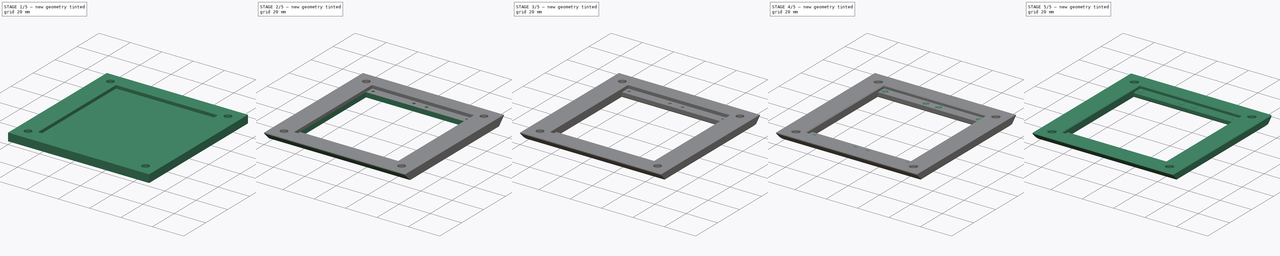
[diagram: build sequence overview — one tinted view per stage of 5, left to right]
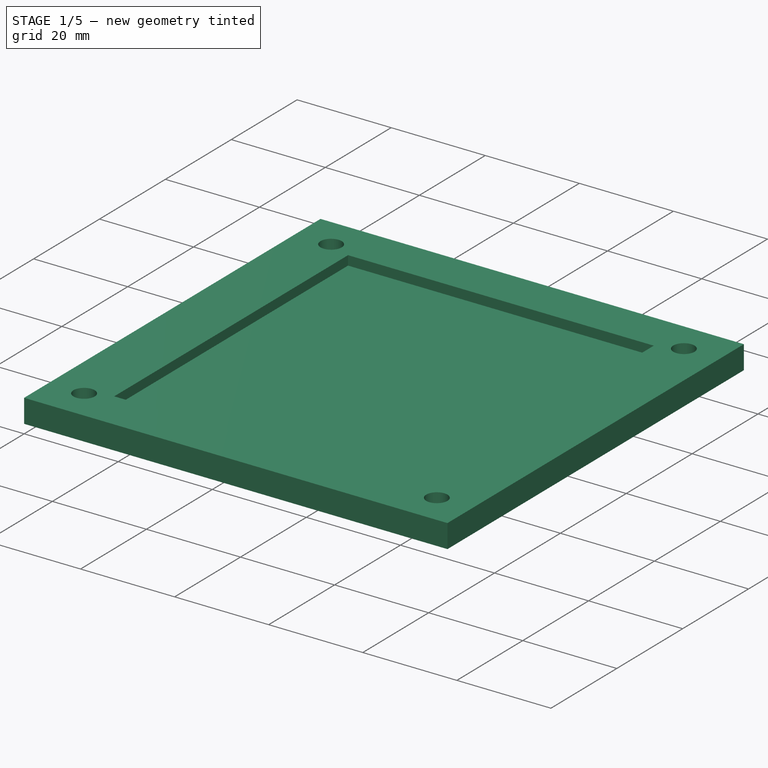
[diagram: stage 1 of 5 — iso view after this stage's code; geometry added in this stage tinted green]
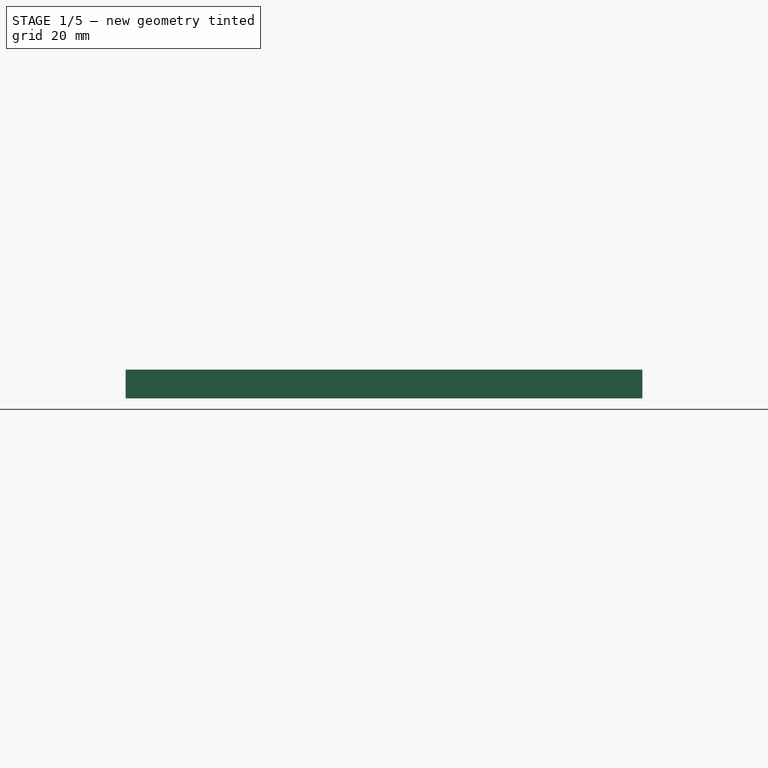
[diagram: stage 1 of 5 — front view after this stage's code; geometry added in this stage tinted green]
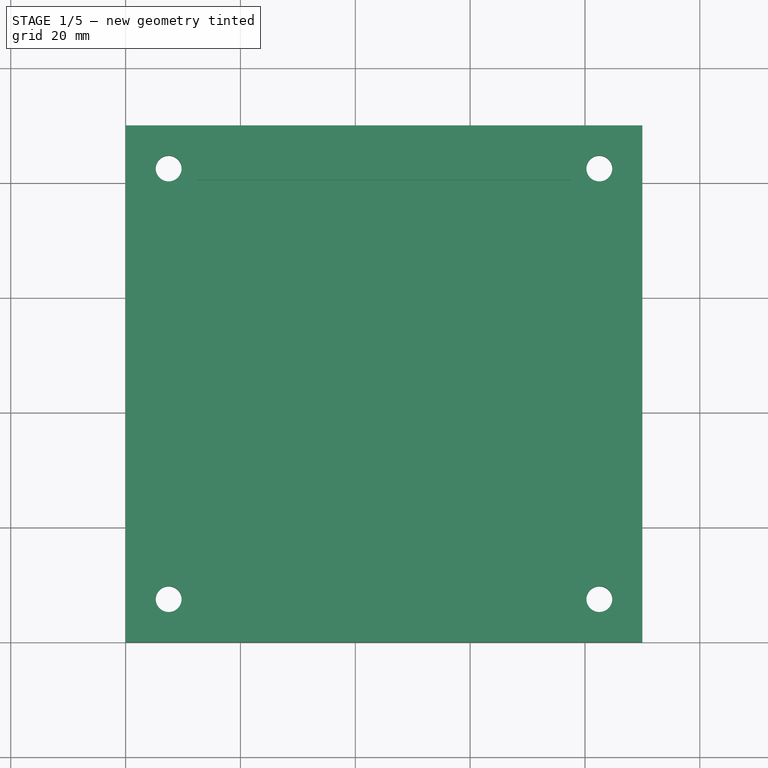
[diagram: stage 1 of 5 — top view after this stage's code; geometry added in this stage tinted green]
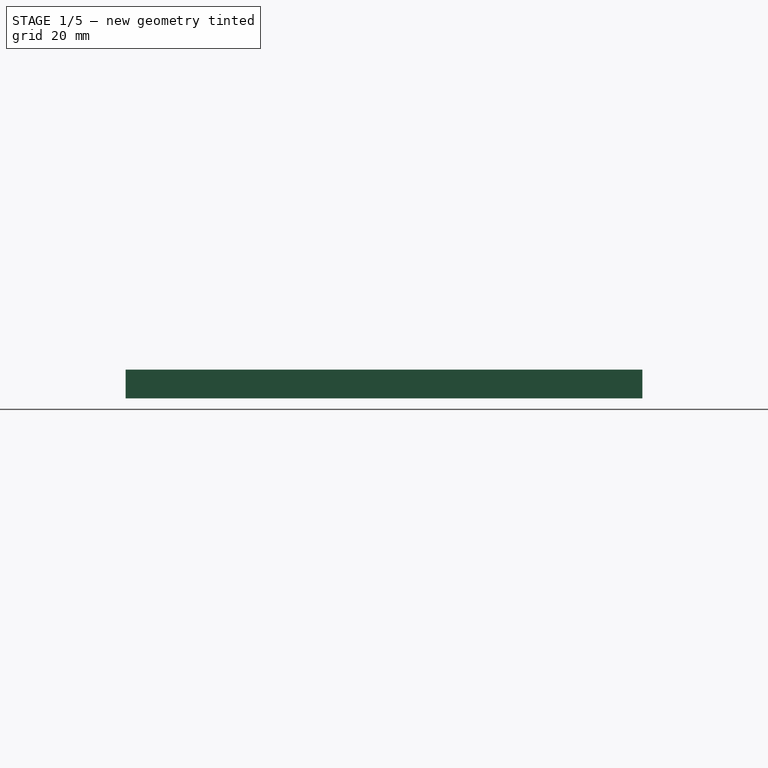
[diagram: stage 1 of 5 — right view after this stage's code; geometry added in this stage tinted green]
FCSTD DOCUMENT  (FreeCAD 0.18R4 (GitTag))
Label: PCB Mount Raspberry Pi
License: All rights reserved
LicenseURL: http://en.wikipedia.org/wiki/All_rights_reserved
objects: PartDesign::Chamfer×11, Sketcher::SketchObject×5, PartDesign::Pocket×4, PartDesign::Pad×1, PartDesign::Body×1
note: 27 computed .brp shape members not serialized (recipe doc carries the construction recipe); baked Part::Feature solids carry a one-line shape summary decoded from their .brp

FEATURE [Sketcher::SketchObject] Sketch
  MapMode = 5
  Support = -> [XY_Plane]
  sketch-geometry (4):
    g0: LineSegment StartX=0 StartY=0 StartZ=0 EndX=90 EndY=0 EndZ=0
    g1: LineSegment StartX=90 StartY=0 StartZ=0 EndX=90 EndY=90 EndZ=0
    g2: LineSegment StartX=90 StartY=90 StartZ=0 EndX=0 EndY=90 EndZ=0
    g3: LineSegment StartX=0 StartY=90 StartZ=0 EndX=0 EndY=0 EndZ=0
  constraints (11):
    c: Coincident(g0,g1)
    c: Coincident(g1,g2)
    c: Coincident(g2,g3)
    c: Coincident(g3,g0)
    c: Horizontal(g0)
    c: Horizontal(g2)
    c: Vertical(g1)
    c: Vertical(g3)
    c: Coincident(g-1,g0)
    c: Equal(g3,g2)
    c: Distance(g3) = 90
FEATURE [PartDesign::Pad] Pad  label="grundplatte"
  Length = 5
  Length2 = 100
  Profile = -> Sketch
  Type = 0
FEATURE [Sketcher::SketchObject] Sketch001
  MapMode = 5
  Placement = pos=(0,0,5) rot=(0,0,1;0rad)
  Support = -> [Pad]
  sketch-geometry (8):
    g0: Circle CenterX=7.5 CenterY=82.5 CenterZ=0 NormalX=0 NormalY=0 NormalZ=1 AngleXU=0 Radius=2.25
    g1: Circle CenterX=82.5 CenterY=82.5 CenterZ=0 NormalX=0 NormalY=0 NormalZ=1 AngleXU=0 Radius=2.25
    g2: Circle CenterX=82.5 CenterY=7.5 CenterZ=0 NormalX=0 NormalY=0 NormalZ=1 AngleXU=0 Radius=2.25
    g3: Circle CenterX=7.5 CenterY=7.5 CenterZ=0 NormalX=0 NormalY=0 NormalZ=1 AngleXU=0 Radius=2.25
    g4: LineSegment [constr] StartX=82.5 StartY=82.5 StartZ=0 EndX=7.5 EndY=82.5 EndZ=0
    g5: LineSegment [constr] StartX=7.5 StartY=82.5 StartZ=0 EndX=7.5 EndY=7.5 EndZ=0
    g6: LineSegment [constr] StartX=7.5 StartY=7.5 StartZ=0 EndX=82.5 EndY=7.5 EndZ=0
    g7: LineSegment [constr] StartX=82.5 StartY=7.5 StartZ=0 EndX=82.5 EndY=82.5 EndZ=0
  constraints (20):
    c: Equal(g0,g1)
    c: Equal(g1,g2)
    c: Equal(g2,g3)
    c: Coincident(g4,g5)
    c: Coincident(g5,g6)
    c: Coincident(g6,g7)
    c: Coincident(g7,g4)
    c: Horizontal(g4)
    c: Horizontal(g6)
    c: Vertical(g5)
    c: Vertical(g7)
    c: Coincident(g0,g4)
    c: Coincident(g2,g6)
    c: Coincident(g5,g3)
    c: Coincident(g1,g4)
    c: Equal(g5,g4)
    c: Distance(g4) = 75
    c: DistanceY(g-1,g3) = 7.5
    c: DistanceX(g-2,g0) = 7.5
    c: Radius(g0) = 2.25
FEATURE [PartDesign::Pocket] Pocket
  BaseFeature = -> Pad
  Length = 5
  Length2 = 100
  Profile = -> Sketch001
  Type = 0
FEATURE [Sketcher::SketchObject] Sketch002
  MapMode = 5
  Placement = pos=(0,0,5) rot=(0,0,1;0rad)
  Support = -> [Pocket]
  sketch-geometry (4):
    g0: LineSegment StartX=12.5 StartY=80.5 StartZ=0 EndX=77.5 EndY=80.5 EndZ=0
    g1: LineSegment StartX=77.5 StartY=80.5 StartZ=0 EndX=77.5 EndY=9.5 EndZ=0
    g2: LineSegment StartX=77.5 StartY=9.5 StartZ=0 EndX=12.5 EndY=9.5 EndZ=0
    g3: LineSegment StartX=12.5 StartY=9.5 StartZ=0 EndX=12.5 EndY=80.5 EndZ=0
  constraints (12):
    c: Coincident(g0,g1)
    c: Coincident(g1,g2)
    c: Coincident(g2,g3)
    c: Coincident(g3,g0)
    c: Horizontal(g0)
    c: Horizontal(g2)
    c: Vertical(g1)
    c: Vertical(g3)
    c: Distance(g3) = 71
    c: Distance(g0) = 65
    c: DistanceY(g-1,g2) = 9.5
    c: DistanceX(g-2,g2) = 12.5
FEATURE [PartDesign::Pocket] Pocket001
  BaseFeature = -> Pocket
  Length = 2
  Length2 = 100
  Profile = -> Sketch002
  Type = 0
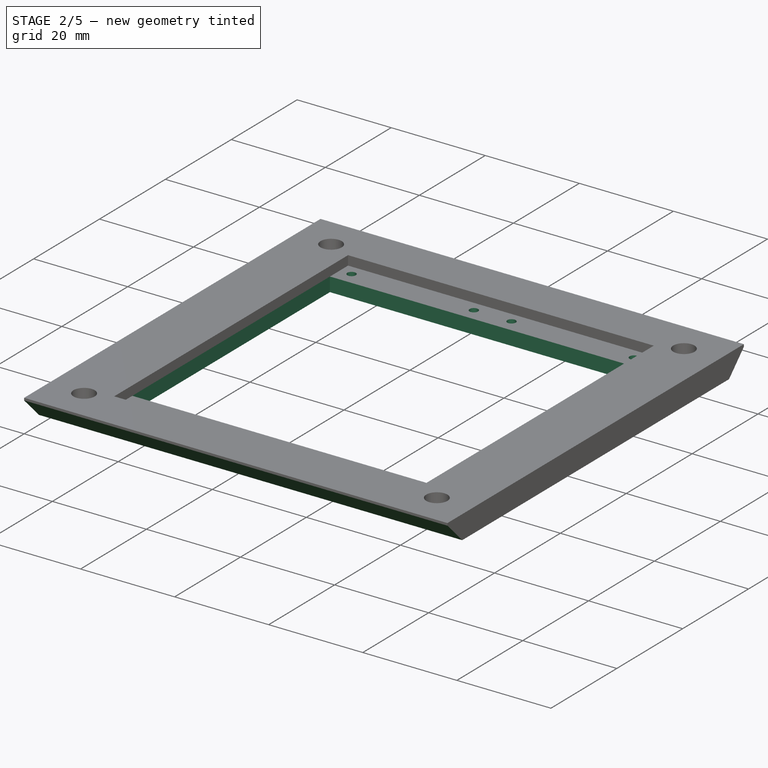
[diagram: stage 2 of 5 — iso view after this stage's code; geometry added in this stage tinted green]
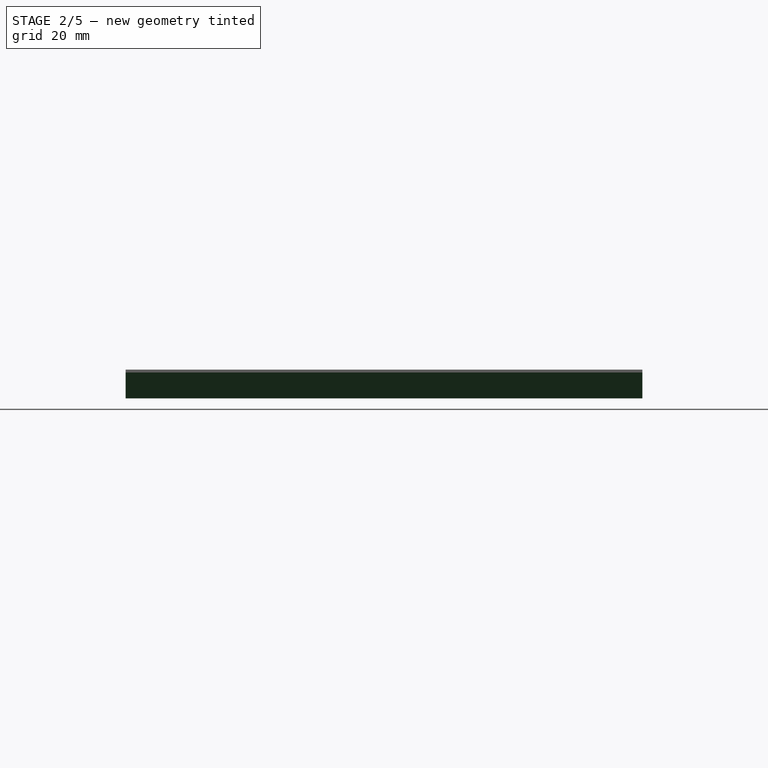
[diagram: stage 2 of 5 — front view after this stage's code; geometry added in this stage tinted green]
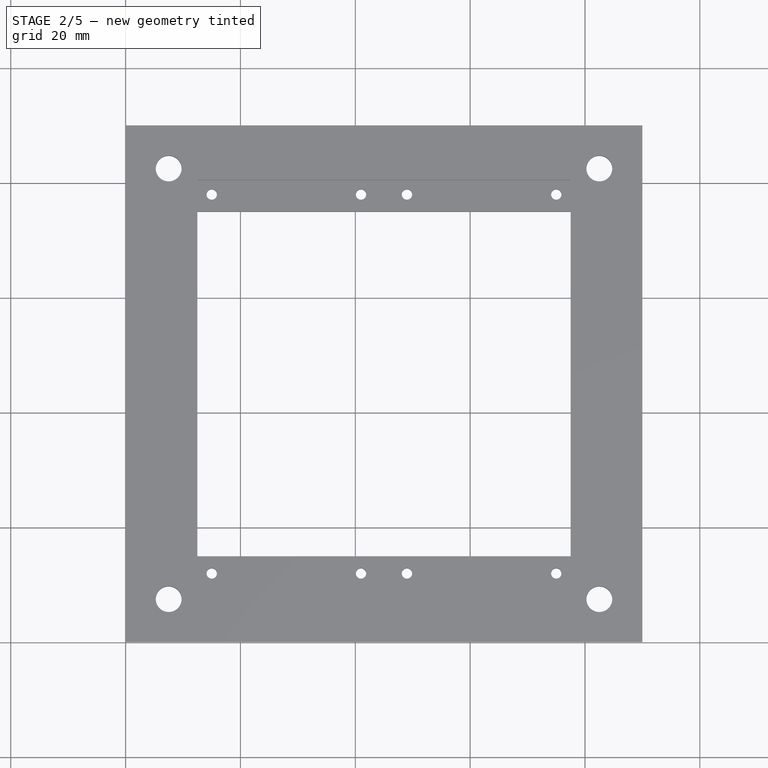
[diagram: stage 2 of 5 — top view after this stage's code; geometry added in this stage tinted green]
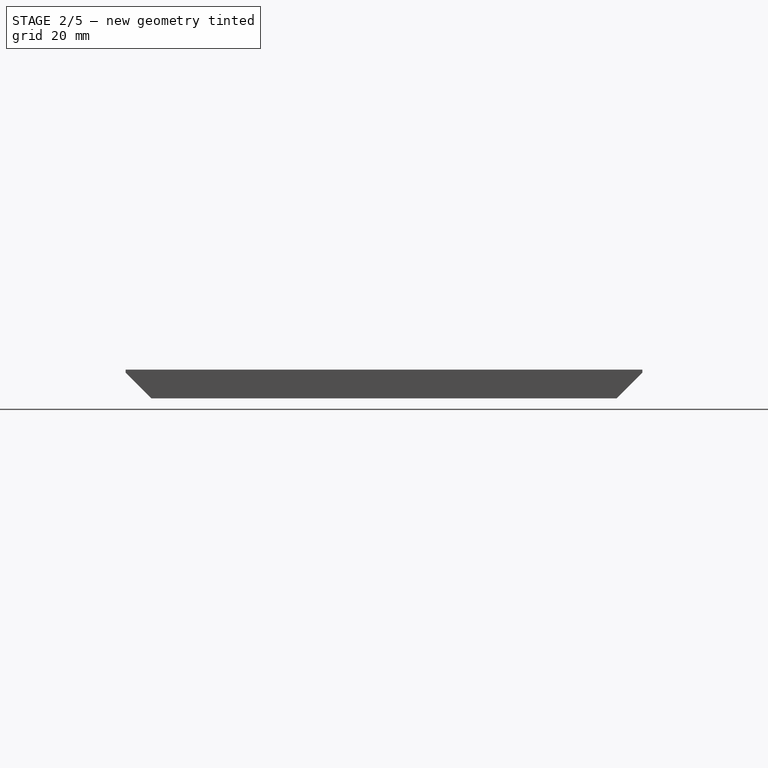
[diagram: stage 2 of 5 — right view after this stage's code; geometry added in this stage tinted green]
FEATURE [Sketcher::SketchObject] Sketch003
  MapMode = 5
  Placement = pos=(0,0,3) rot=(0,0,1;0rad)
  Support = -> [Pocket001]
  sketch-geometry (22):
    g0: Circle CenterX=15 CenterY=78 CenterZ=0 NormalX=0 NormalY=0 NormalZ=1 AngleXU=0 Radius=0.9
    g1: Circle CenterX=41 CenterY=78 CenterZ=0 NormalX=0 NormalY=0 NormalZ=1 AngleXU=0 Radius=0.9
    g2: Circle CenterX=41 CenterY=12 CenterZ=0 NormalX=0 NormalY=0 NormalZ=1 AngleXU=0 Radius=0.9
    g3: Circle CenterX=15 CenterY=12 CenterZ=0 NormalX=0 NormalY=0 NormalZ=1 AngleXU=0 Radius=0.9
    g4: LineSegment [constr] StartX=15 StartY=78 StartZ=0 EndX=41 EndY=78 EndZ=0
    g5: LineSegment [constr] StartX=41 StartY=78 StartZ=0 EndX=41 EndY=12 EndZ=0
    g6: LineSegment [constr] StartX=41 StartY=12 StartZ=0 EndX=15 EndY=12 EndZ=0
    g7: LineSegment [constr] StartX=15 StartY=12 StartZ=0 EndX=15 EndY=78 EndZ=0
    g8: Circle CenterX=49 CenterY=78 CenterZ=0 NormalX=0 NormalY=0 NormalZ=1 AngleXU=0 Radius=0.9
    g9: Circle CenterX=75 CenterY=78 CenterZ=0 NormalX=0 NormalY=0 NormalZ=1 AngleXU=0 Radius=0.9
    g10: Circle CenterX=75 CenterY=12 CenterZ=0 NormalX=0 NormalY=0 NormalZ=1 AngleXU=0 Radius=0.9
    g11: Circle CenterX=49 CenterY=12 CenterZ=0 NormalX=0 NormalY=0 NormalZ=1 AngleXU=0 Radius=0.9
    g12: LineSegment [constr] StartX=49 StartY=78 StartZ=0 EndX=75 EndY=78 EndZ=0
    g13: LineSegment [constr] StartX=75 StartY=78 StartZ=0 EndX=75 EndY=12 EndZ=0
    g14: LineSegment [constr] StartX=75 StartY=12 StartZ=0 EndX=49 EndY=12 EndZ=0
    g15: LineSegment [constr] StartX=49 StartY=12 StartZ=0 EndX=49 EndY=78 EndZ=0
    g16: LineSegment [constr] StartX=15 StartY=78 StartZ=0 EndX=45 EndY=78 EndZ=0
    g17: LineSegment [constr] StartX=45 StartY=78 StartZ=0 EndX=75 EndY=78 EndZ=0
    g18: LineSegment [constr] StartX=15 StartY=78 StartZ=0 EndX=15 EndY=45 EndZ=0
    g19: LineSegment [constr] StartX=15 StartY=45 StartZ=0 EndX=15 EndY=12 EndZ=0
    g20: LineSegment [constr] StartX=45 StartY=78 StartZ=0 EndX=45 EndY=45 EndZ=0
    g21: LineSegment [constr] StartX=15 StartY=45 StartZ=0 EndX=45 EndY=45 EndZ=0
  constraints (55):
    c: Coincident(g4,g5)
    c: Coincident(g5,g6)
    c: Coincident(g6,g7)
    c: Coincident(g7,g4)
    c: Horizontal(g4)
    c: Horizontal(g6)
    c: Vertical(g5)
    c: Vertical(g7)
    c: Coincident(g2,g5)
    c: Coincident(g3,g6)
    c: Coincident(g0,g4)
    c: Coincident(g1,g4)
    c: Equal(g0,g1)
    c: Equal(g1,g2)
    c: Equal(g2,g3)
    c: Coincident(g12,g13)
    c: Coincident(g13,g14)
    c: Coincident(g14,g15)
    c: Coincident(g15,g12)
    c: Horizontal(g12)
    c: Horizontal(g14)
    c: Vertical(g13)
    c: Vertical(g15)
    c: Coincident(g10,g13)
    c: Coincident(g11,g14)
    c: Coincident(g8,g12)
    c: Coincident(g9,g12)
    c: Equal(g8,g9)
    c: Equal(g9,g10)
    c: Equal(g10,g11)
    c: Equal(g5,g15)
    c: Equal(g14,g6)
    c: Equal(g1,g8)
    c: Radius(g0) = 0.9
    c: Distance(g4) = 26
    c: Distance(g7) = 66
    c: Horizontal(g17)
    c: Horizontal(g16)
    c: Coincident(g17,g16)
    c: Coincident(g17,g9)
    c: Coincident(g16,g0)
    c: Equal(g17,g16)
    c: Equal(g19,g18)
    c: Coincident(g19,g18)
    c: Vertical(g18)
    c: Coincident(g18,g0)
    c: Coincident(g19,g3)
    c: DistanceY(g-1,g18) = 45
    c: DistanceX(g-2,g16) = 45
    c: Coincident(g21,g20)
    c: Coincident(g21,g18)
    c: Coincident(g20,g16)
    c: Vertical(g20)
    c: Horizontal(g21)
    c: Distance(g1,g8) = 8
FEATURE [PartDesign::Pocket] Pocket002
  BaseFeature = -> Pocket001
  Length = 5
  Length2 = 100
  Profile = -> Sketch003
  Type = 0
FEATURE [Sketcher::SketchObject] Sketch004
  MapMode = 5
  Placement = pos=(0,0,3) rot=(0,0,1;0rad)
  Support = -> [Pocket002]
  sketch-geometry (4):
    g0: LineSegment StartX=12.5 StartY=75 StartZ=0 EndX=77.5 EndY=75 EndZ=0
    g1: LineSegment StartX=77.5 StartY=75 StartZ=0 EndX=77.5 EndY=15 EndZ=0
    g2: LineSegment StartX=77.5 StartY=15 StartZ=0 EndX=12.5 EndY=15 EndZ=0
    g3: LineSegment StartX=12.5 StartY=15 StartZ=0 EndX=12.5 EndY=75 EndZ=0
  constraints (12):
    c: Coincident(g0,g1)
    c: Coincident(g1,g2)
    c: Coincident(g2,g3)
    c: Coincident(g3,g0)
    c: Horizontal(g0)
    c: Horizontal(g2)
    c: Vertical(g1)
    c: Vertical(g3)
    c: Distance(g0) = 65
    c: DistanceX(g-2,g0) = 12.5
    c: Distance(g3) = 60
    c: DistanceY(g-1,g2) = 15
FEATURE [PartDesign::Pocket] Pocket003
  BaseFeature = -> Pocket002
  Length = 3
  Length2 = 100
  Profile = -> Sketch004
  Type = 0
FEATURE [PartDesign::Chamfer] Chamfer
  Base = -> Pocket003 [Edge11,Edge3]
  BaseFeature = -> Pocket003
  Size = 4.5
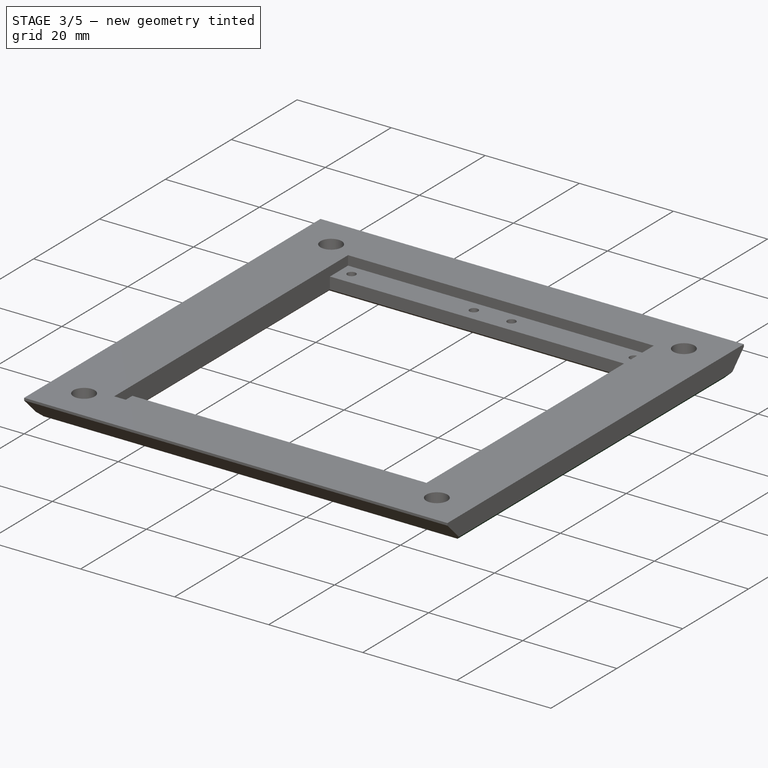
[diagram: stage 3 of 5 — iso view after this stage's code; geometry added in this stage tinted green]
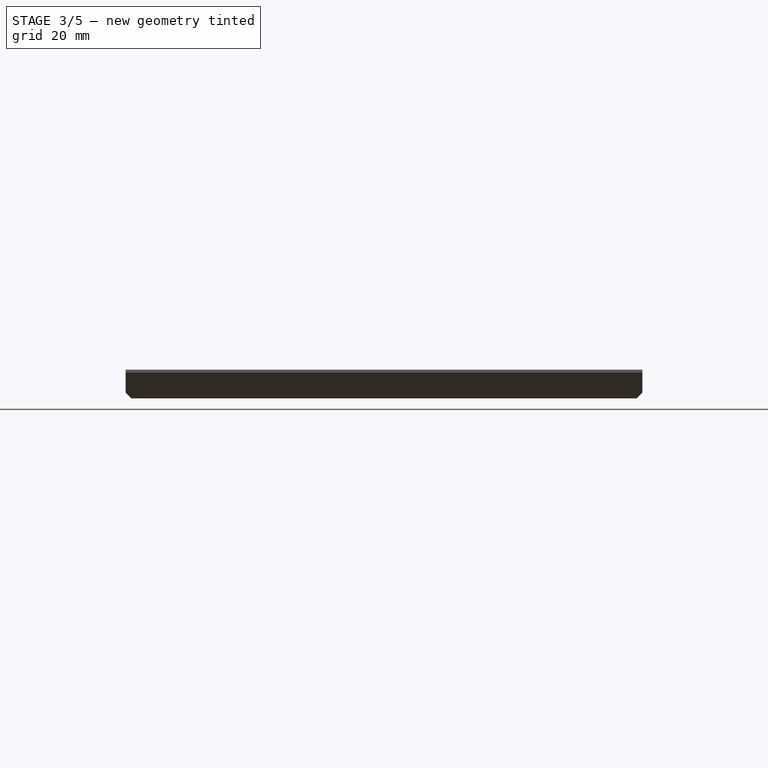
[diagram: stage 3 of 5 — front view after this stage's code; geometry added in this stage tinted green]
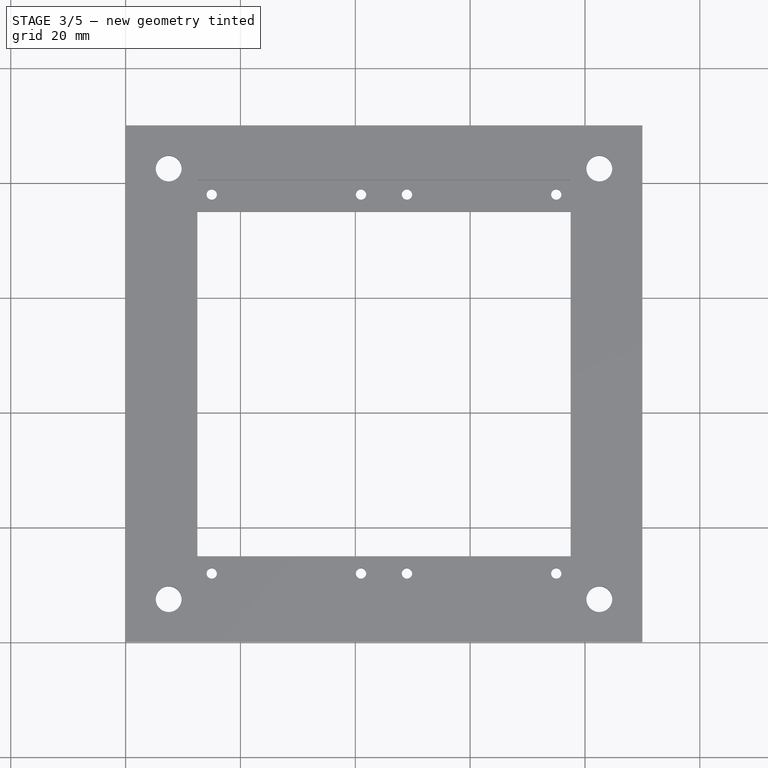
[diagram: stage 3 of 5 — top view after this stage's code; geometry added in this stage tinted green]
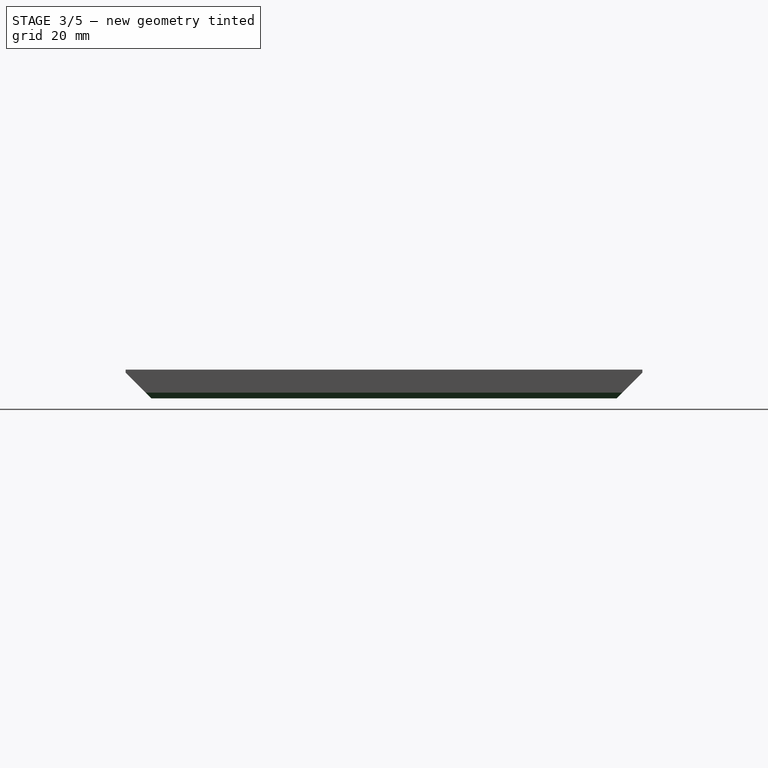
[diagram: stage 3 of 5 — right view after this stage's code; geometry added in this stage tinted green]
FEATURE [PartDesign::Chamfer] Chamfer001
  Base = -> Chamfer [Edge8,Edge22]
  BaseFeature = -> Chamfer
  Size = 1
FEATURE [PartDesign::Chamfer] Chamfer002
  Base = -> Chamfer001 [Edge44,Edge41,Edge42,Edge43]
  BaseFeature = -> Chamfer001
  Size = 0.5
FEATURE [PartDesign::Chamfer] Chamfer003
  Base = -> Chamfer002 [Edge19,Edge13,Edge20,Edge18]
  BaseFeature = -> Chamfer002
  Size = 0.5
FEATURE [PartDesign::Chamfer] Chamfer004
  Base = -> Chamfer003 [Edge17,Edge16,Edge10,Edge12,Edge13,Edge11,Edge15,Edge14]
  BaseFeature = -> Chamfer003
  Size = 0.5
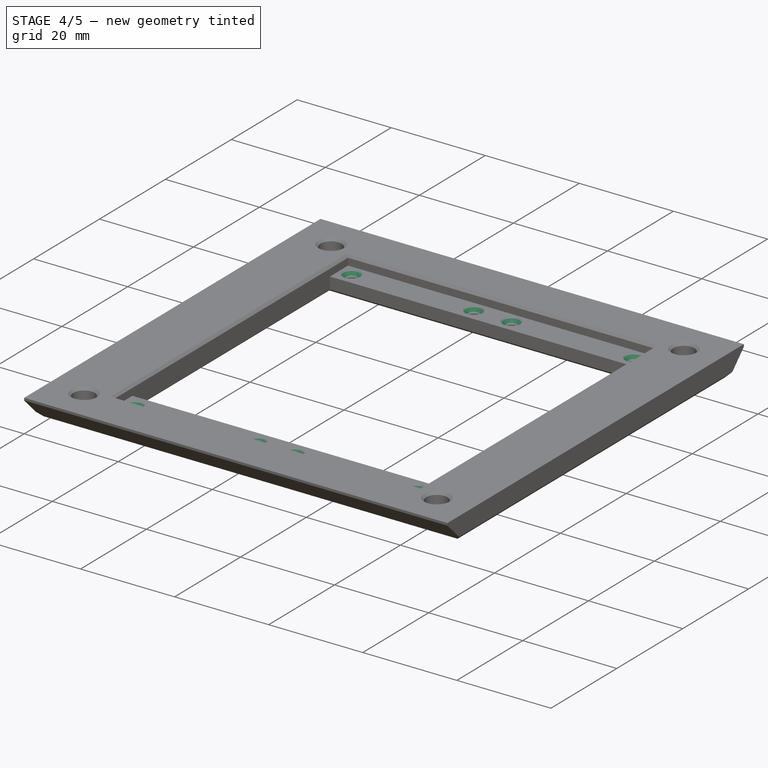
[diagram: stage 4 of 5 — iso view after this stage's code; geometry added in this stage tinted green]
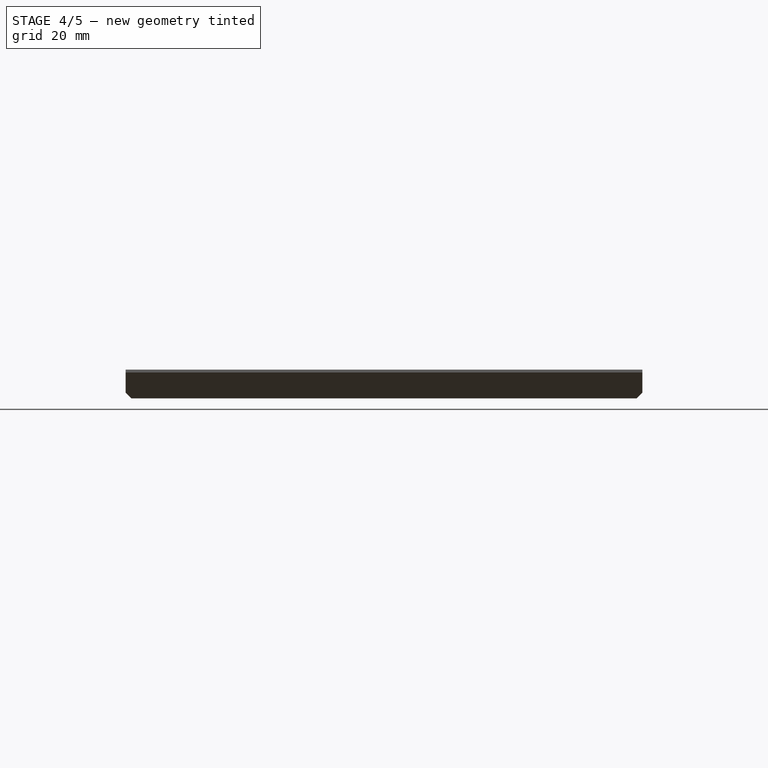
[diagram: stage 4 of 5 — front view after this stage's code; geometry added in this stage tinted green]
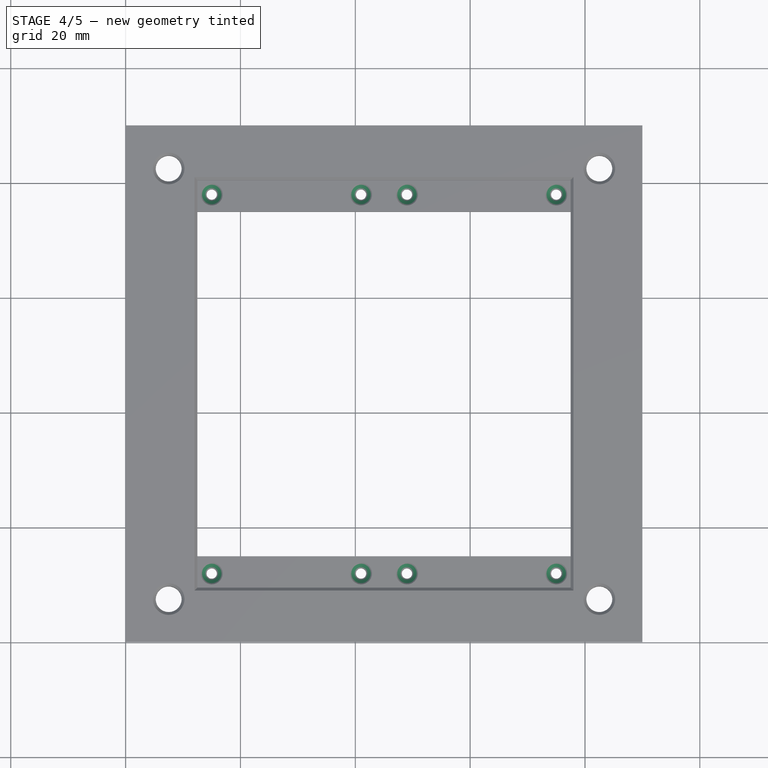
[diagram: stage 4 of 5 — top view after this stage's code; geometry added in this stage tinted green]
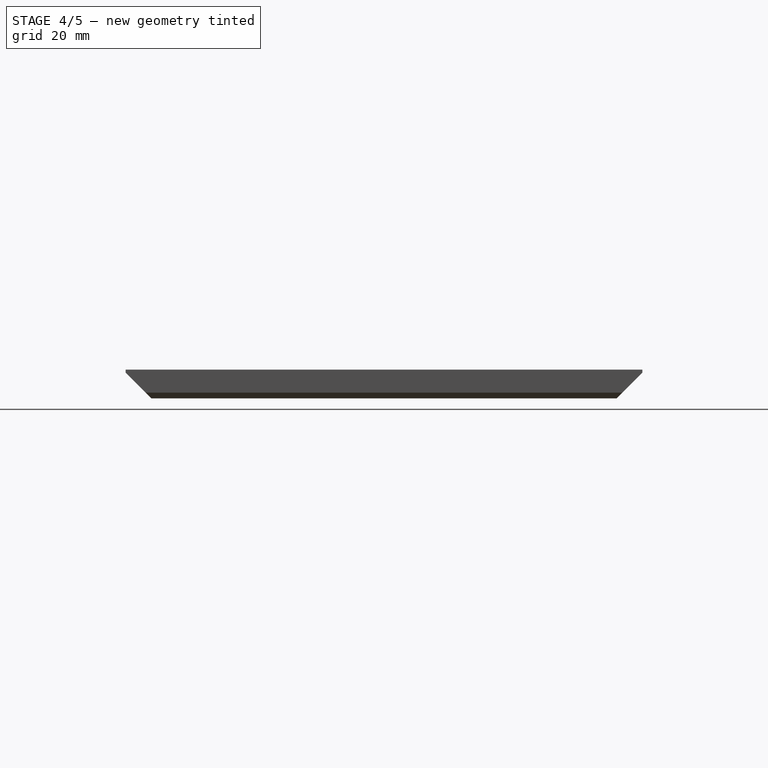
[diagram: stage 4 of 5 — right view after this stage's code; geometry added in this stage tinted green]
FEATURE [PartDesign::Chamfer] Chamfer005
  Base = -> Chamfer004 [Edge68,Edge88,Edge86,Edge90]
  BaseFeature = -> Chamfer004
  Size = 0.5
FEATURE [PartDesign::Chamfer] Chamfer006
  Base = -> Chamfer005 [Edge112,Edge111,Edge113,Edge106,Edge104,Edge105,Edge103,Edge110]
  BaseFeature = -> Chamfer005
  Size = 1
FEATURE [PartDesign::Chamfer] Chamfer007
  Base = -> Chamfer006 [Edge19,Edge33,Edge13,Edge17]
  BaseFeature = -> Chamfer006
  Size = 0.5
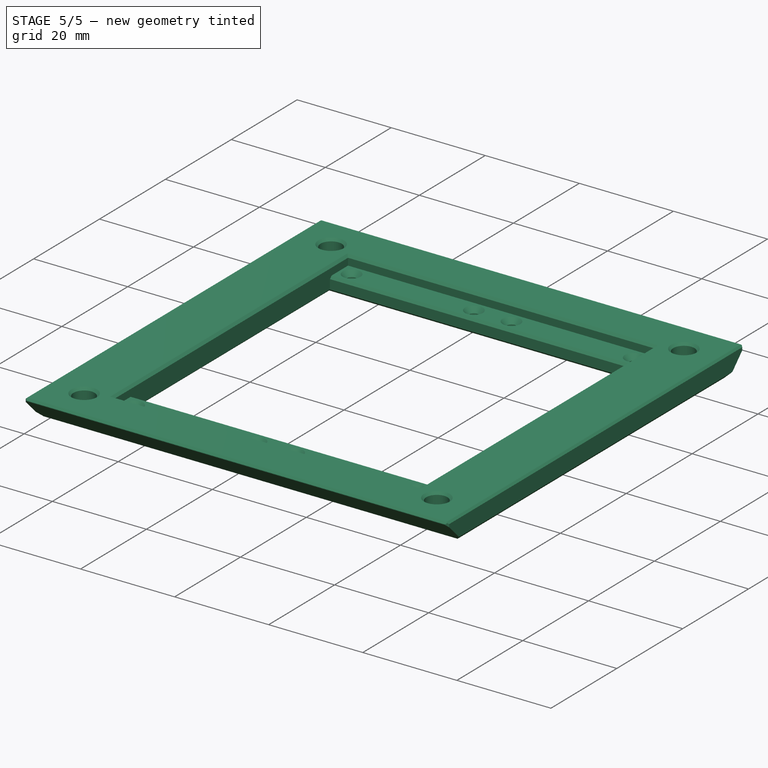
[diagram: stage 5 of 5 — iso view after this stage's code; geometry added in this stage tinted green]
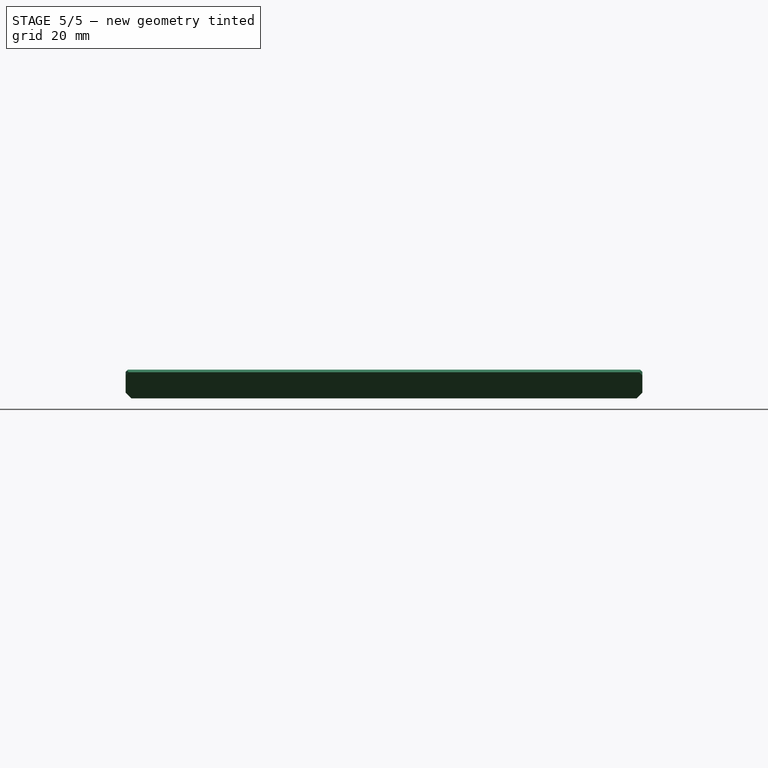
[diagram: stage 5 of 5 — front view after this stage's code; geometry added in this stage tinted green]
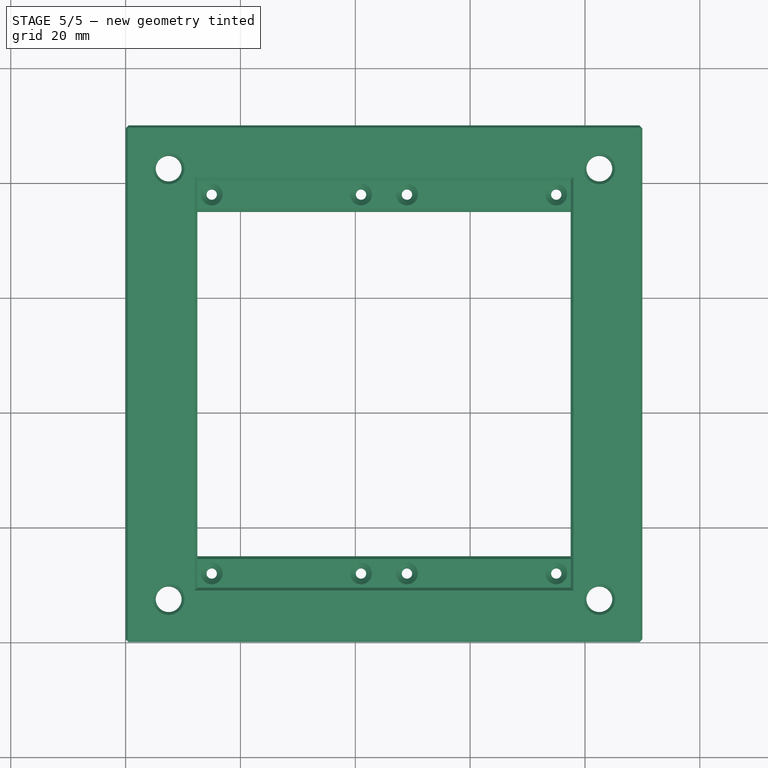
[diagram: stage 5 of 5 — top view after this stage's code; geometry added in this stage tinted green]
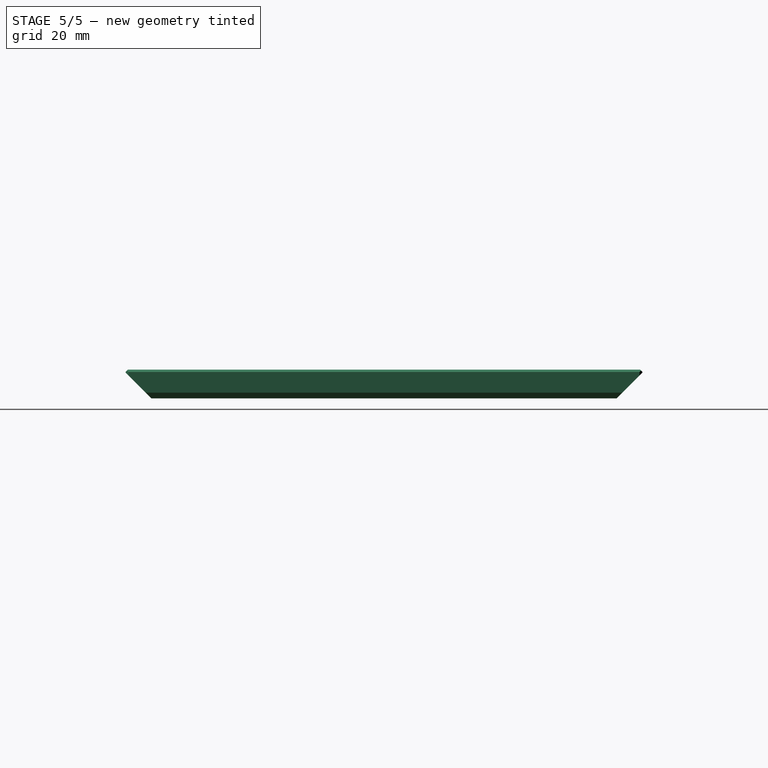
[diagram: stage 5 of 5 — right view after this stage's code; geometry added in this stage tinted green]
FEATURE [PartDesign::Chamfer] Chamfer008
  Base = -> Chamfer007 [Edge15,Edge26]
  BaseFeature = -> Chamfer007
  Size = 0.5
FEATURE [PartDesign::Chamfer] Chamfer009
  Base = -> Chamfer008 [Edge65,Edge66,Edge64,Edge63]
  BaseFeature = -> Chamfer008
  Size = 0.4
FEATURE [PartDesign::Chamfer] Chamfer010
  Base = -> Chamfer009 [Edge37,Edge39,Edge45,Edge42]
  BaseFeature = -> Chamfer009
  Size = 0.5
FEATURE [PartDesign::Body] Body
  Group = -> [Sketch,Pad,Sketch001,Pocket,Sketch002,Pocket001,Sketch003,Pocket002,Sketch004,Pocket003,Chamfer,Chamfer001,Chamfer002,Chamfer003,Chamfer004,Chamfer005,Chamfer006,Chamfer007,Chamfer008,Chamfer009,Chamfer010]
  Origin = -> Origin
  Tip = -> Chamfer010
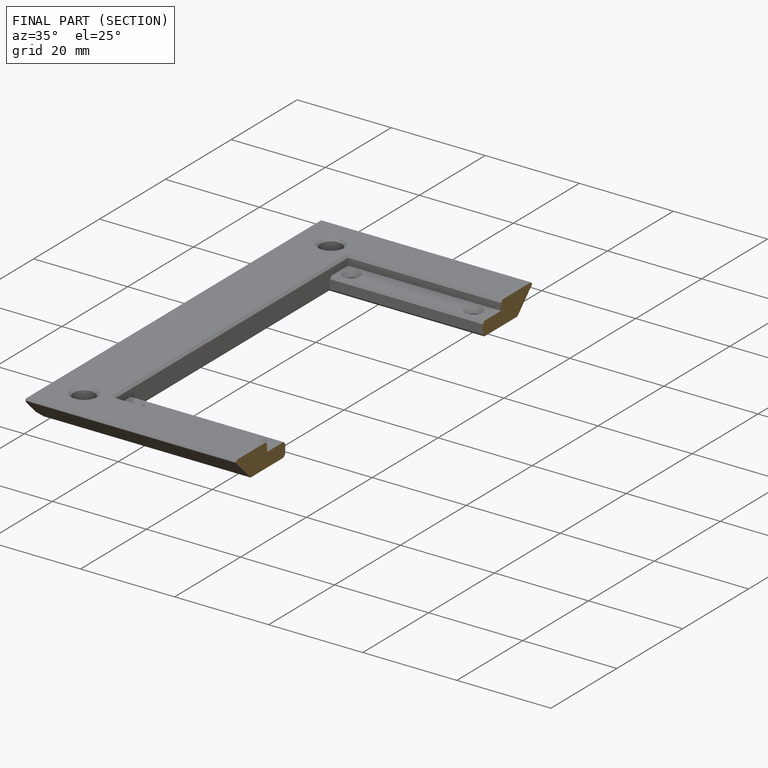
[diagram: finished part — half-section view (interior)]
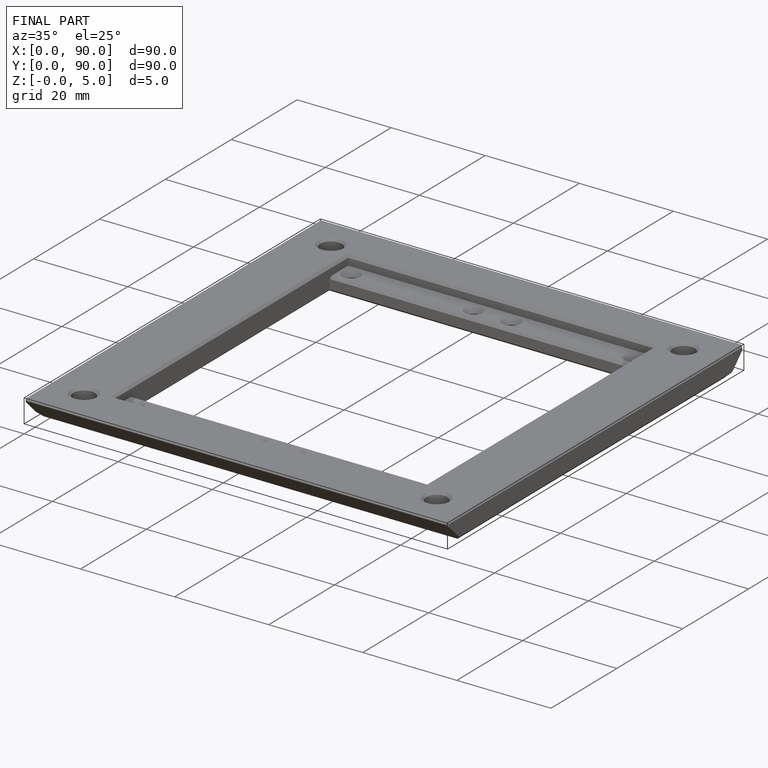
[diagram: finished part — iso view with bounding-box wireframe]
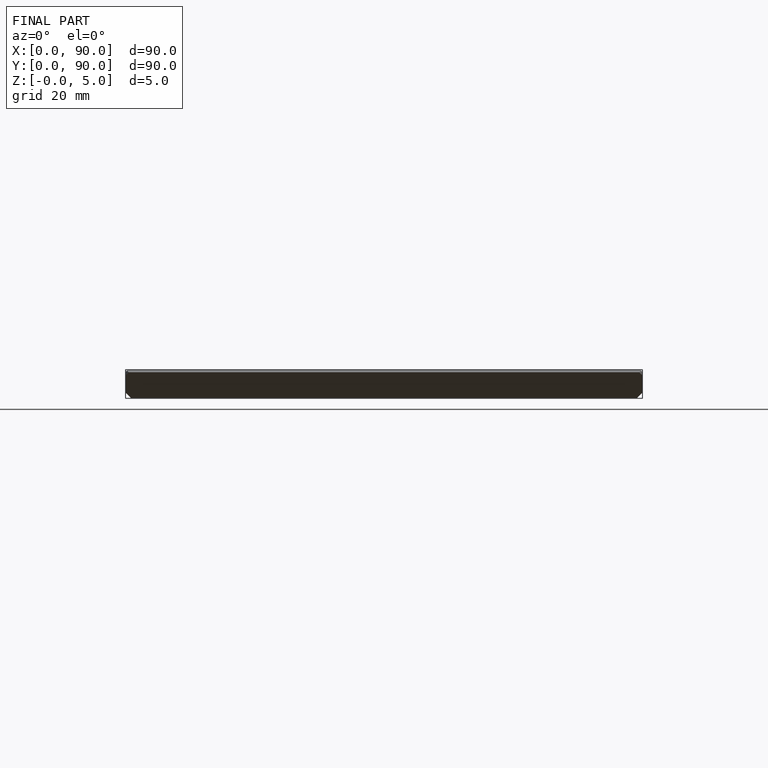
[diagram: finished part — front view with bounding-box wireframe]
